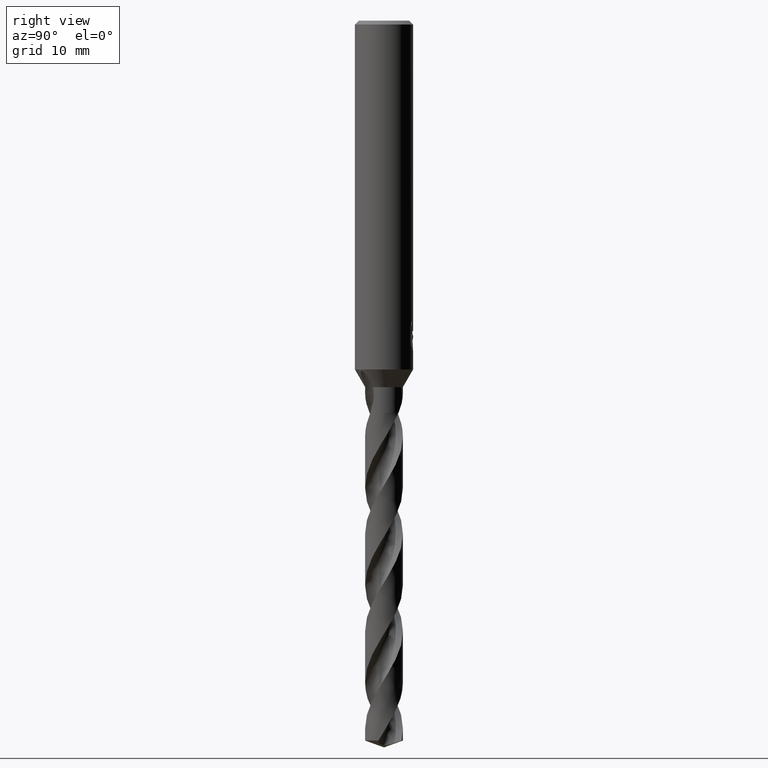
[diagram: clean part render]
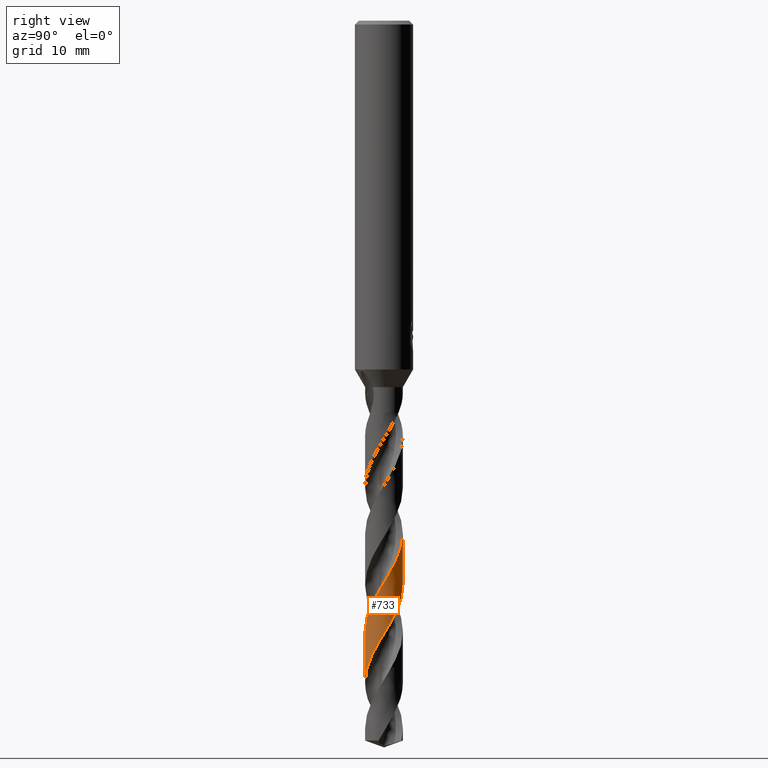
[diagram: same view with one face highlighted and labeled with its STEP entity id]
A machine part, right view. The second image highlights one B-rep face of the part: STEP entity #733.
In plain terms, the highlighted conical surface has half-angle 0 deg.
Its self-contained STEP definition (entity closure, byte-faithful):
#363=VERTEX_POINT('',#923);
#571=VERTEX_POINT('',#1148);
#573=VERTEX_POINT('',#1150);
#577=VERTEX_POINT('',#1154);
#637=EDGE_CURVE('',#571,#363,#1218,.T.);
#699=EDGE_CURVE('',#573,#577,#1289,.T.);
#733=ADVANCED_FACE('',(#1326),#1327,.T.);
#747=EDGE_CURVE('',#571,#577,#1342,.T.);
#777=EDGE_CURVE('',#573,#363,#1374,.T.);
#923=CARTESIAN_POINT('',(-1.05554729201607E-014,1.94995261129944,-58.2530412703941));
#1148=CARTESIAN_POINT('',(4.85083929475335E-014,1.94993697140284,-52.9602096663233));
#1150=CARTESIAN_POINT('',(9.78225902459E-013,-1.94998228901867,-68.2965328845222));
#1154=CARTESIAN_POINT('',(-3.98840838446349E-015,-1.9499666499134,-63.0039690808422));
#1218=LINE('',#5367,#5368);
#1289=LINE('',#5627,#5628);
#1326=FACE_OUTER_BOUND('',#6011,.T.);
#1327=CONICAL_SURFACE('',#6012,1.94995,2.95492049733504E-006);
#1342=B_SPLINE_CURVE_WITH_KNOTS('',3,(#6214,#6215,#6216,#6217,#6218,#6219,#6220,#6221,#6222,#6223,#6224,#6225,#6226,#6227,#6228,#6229,#6230,#6231,#6232,#6233,#6234,#6235,#6236,#6237,#6238,#6239,#6240,#6241,#6242,#6243,#6244,#6245,#6246,#6247,#6248,#6249,#6250,#6251,#6252,#6253,#6254,#6255,#6256,#6257,#6258,#6259,#6260,#6261,#6262,#6263,#6264,#6265,#6266,#6267,#6268,#6269,#6270,#6271,#6272,#6273,#6274,#6275,#6276,#6277,#6278,#6279,#6280,#6281,#6282,#6283,#6284,#6285,#6286,#6287,#6288,#6289,#6290,#6291,#6292,#6293,#6294,#6295,#6296,#6297,#6298,#6299,#6300,#6301,#6302,#6303,#6304,#6305,#6306,#6307,#6308,#6309,#6310,#6311,#6312,#6313,#6314,#6315,#6316,#6317,#6318,#6319,#6320,#6321,#6322,#6323,#6324,#6325,#6326,#6327,#6328,#6329,#6330,#6331,#6332,#6333,#6334,#6335,#6336,#6337,#6338,#6339,#6340,#6341,#6342,#6343,#6344,#6345,#6346,#6347,#6348,#6349,#6350,#6351,#6352,#6353,#6354,#6355,#6356,#6357,#6358,#6359,#6360,#6361,#6362,#6363,#6364,#6365,#6366,#6367,#6368,#6369),.UNSPECIFIED.,.F.,.F.,(4,2,2,2,2,2,2,2,2,2,2,2,2,2,2,2,2,2,2,2,2,2,2,2,2,2,2,2,2,2,2,2,2,2,2,2,2,2,2,2,2,2,2,2,2,2,2,2,2,2,2,2,2,2,2,2,2,2,2,2,2,2,2,2,2,2,2,2,2,2,2,2,2,2,2,2,2,4),(0.0,0.0979046853951883,0.149922485147362,0.160049441697589,0.163963055579134,0.165513142605427,0.417084721360923,0.474068618692059,0.504859357691474,0.530490834681193,0.560616053081731,0.614557041861671,0.690720552955722,1.01953902144858,1.23973757551938,1.61599705278352,2.1549237169816,2.71774002751933,3.26552075598812,3.60811141031876,3.97075666202703,4.92372576567829,4.99723120420625,6.04110593505541,6.39069278509595,7.12446955603766,7.62708374864835,8.35987913346171,8.85896792930462,9.57970487598089,10.1083711978869,10.8537332023969,11.3272716179718,12.0450675342314,12.5818285286132,13.3304133229661,13.7963904548219,14.5056606606216,15.0651349985822,15.8354825482885,16.2644103893556,16.9069931244814,17.5827160421169,18.4490726076606,18.7718130564106,19.5395224702248,19.971940138428,20.6154696603686,21.2908778009532,22.1652083560368,22.4818634637873,23.2553496627868,23.6779000007728,24.3204521121955,24.9958579002632,25.8699056265542,26.1867991102615,26.9612273660296,27.3817937625295,28.0205002427548,28.6963572167619,29.5590423590258,29.8845076190832,30.648854355607,31.3602851710284,32.03179307645,32.3558295561605,33.1220093270903,33.555451203738,34.1996794489425,34.4817650741233,34.8155460858312,35.5641884588478,36.3415493268169,36.936320586868,37.3799048524212,38.053288661507,38.7314257504642),.UNSPECIFIED.);
#1374=B_SPLINE_CURVE_WITH_KNOTS('',3,(#6420,#6421,#6422,#6423,#6424,#6425,#6426,#6427,#6428,#6429,#6430,#6431,#6432,#6433,#6434,#6435,#6436,#6437,#6438,#6439,#6440,#6441,#6442,#6443,#6444,#6445,#6446,#6447,#6448,#6449,#6450,#6451,#6452,#6453,#6454,#6455,#6456,#6457,#6458,#6459,#6460,#6461,#6462,#6463,#6464,#6465,#6466,#6467,#6468,#6469,#6470,#6471,#6472,#6473,#6474,#6475,#6476,#6477,#6478,#6479,#6480,#6481,#6482,#6483,#6484,#6485,#6486,#6487,#6488,#6489,#6490,#6491,#6492,#6493,#6494,#6495,#6496,#6497,#6498,#6499,#6500,#6501,#6502,#6503,#6504,#6505,#6506,#6507,#6508,#6509,#6510,#6511,#6512,#6513,#6514,#6515,#6516,#6517,#6518,#6519,#6520,#6521,#6522,#6523,#6524,#6525,#6526,#6527,#6528,#6529,#6530,#6531,#6532,#6533,#6534,#6535,#6536,#6537,#6538,#6539,#6540,#6541,#6542,#6543,#6544,#6545,#6546,#6547,#6548,#6549,#6550,#6551,#6552,#6553,#6554,#6555),.UNSPECIFIED.,.F.,.F.,(4,2,2,2,2,2,2,2,2,2,2,2,2,2,2,2,2,2,2,2,2,2,2,2,2,2,2,2,2,2,2,2,2,2,2,2,2,2,2,2,2,2,2,2,2,2,2,2,2,2,2,2,2,2,2,2,2,2,2,2,2,2,2,2,2,2,2,4),(0.0,1.02241747386654,1.65349218471775,1.77400106783442,2.72781449900549,3.35600215112076,4.04768943947021,4.33286432280795,5.28861980383423,5.88973198296546,6.51809903709601,7.13662556940909,7.76442942369171,8.38422948727949,9.01153427421295,9.63274516277076,10.2597171023843,10.8821366125359,11.5088518704655,12.1323541731441,12.7588103583242,13.3834541351235,14.0097199012834,14.6355313831368,15.2617419000573,15.8885828135036,16.5147569907077,17.142592013838,17.7687036602715,18.3976629894496,19.0238653233837,19.6538740342576,20.2802343357072,20.9112575034555,21.533759100628,22.1660103710564,22.7618353349035,23.0794934152845,23.354919005303,24.3446104243475,24.6250947829089,25.6060216530638,25.8944085554061,26.8569597577289,27.4636920448669,28.0976084789167,28.7515919177278,29.4504842761027,29.7333865825082,30.7114141271194,31.0046130769319,31.9612650412463,32.5845026001111,33.220180915448,33.8457301072348,34.4806904489976,35.1069788005913,37.2829082048022,37.3741038810244,38.2102312801977,38.7825295377473,39.2282635726625,39.2961593751535,39.3264768907185,39.3590516818284,39.4105293148284,39.5562994202069,39.7686556126109),.UNSPECIFIED.);
#5367=CARTESIAN_POINT('',(-2.38752657586984E-016,1.94995,-57.3693290215905));
#5368=VECTOR('',#7977,1.0);
#5627=CARTESIAN_POINT('',(2.38831574340205E-016,-1.94995,-57.3693290215905));
#5628=VECTOR('',#8064,1.0);
#6011=EDGE_LOOP('',(#8117,#8118,#8119,#8120));
#6012=AXIS2_PLACEMENT_3D('',#8121,#8122,#8123);
#6214=CARTESIAN_POINT('',(1.3553301078067,-1.40185247672167,-40.4534));
#6215=CARTESIAN_POINT('',(1.34371833145889,-1.41307901713366,-40.4817578528927));
#6216=CARTESIAN_POINT('',(1.33192350626701,-1.42420391936833,-40.5101608160472));
#6217=CARTESIAN_POINT('',(1.31352979788099,-1.4411196581388,-40.5536125630587));
#6218=CARTESIAN_POINT('',(1.30709476118686,-1.44695918510251,-40.5686629056433));
#6219=CARTESIAN_POINT('',(1.2993247387912,-1.45391530507211,-40.5866376884887));
#6220=CARTESIAN_POINT('',(1.29805622544452,-1.45504796100044,-40.5895660018118));
#6221=CARTESIAN_POINT('',(1.2962940783799,-1.45661723814348,-40.5936251373874));
#6222=CARTESIAN_POINT('',(1.29580254750836,-1.45705452454529,-40.5947564504834));
#6223=CARTESIAN_POINT('',(1.29511582449243,-1.45766483933725,-40.5963357064044));
#6224=CARTESIAN_POINT('',(1.29492094036287,-1.45783796976688,-40.5967837336493));
#6225=CARTESIAN_POINT('',(1.26308800491878,-1.48610617102669,-40.6699416652995));
#6226=CARTESIAN_POINT('',(1.23083453991984,-1.51297054210055,-40.7401017510077));
#6227=CARTESIAN_POINT('',(1.18839165508777,-1.54594248717846,-40.8277218155206));
#6228=CARTESIAN_POINT('',(1.18048655285334,-1.55198772692643,-40.8438610422588));
#6229=CARTESIAN_POINT('',(1.16818899468232,-1.56124260641394,-40.8687183037018));
#6230=CARTESIAN_POINT('',(1.16385599583751,-1.56447547025157,-40.8774298484447));
#6231=CARTESIAN_POINT('',(1.15587834377709,-1.57037597767451,-40.893389551495));
#6232=CARTESIAN_POINT('',(1.15224163052174,-1.57304635908088,-40.9006350806597));
#6233=CARTESIAN_POINT('',(1.14430170784131,-1.5788341226025,-40.9163937481486));
#6234=CARTESIAN_POINT('',(1.13999548583052,-1.5819462945405,-40.9249023319903));
#6235=CARTESIAN_POINT('',(1.12793123539355,-1.59059032722183,-40.9486442277364));
#6236=CARTESIAN_POINT('',(1.12014421728231,-1.5960839096605,-40.9638591479763));
#6237=CARTESIAN_POINT('',(1.10125002861286,-1.609206668312,-41.0005712717641));
#6238=CARTESIAN_POINT('',(1.09019440896932,-1.61671929297637,-41.0219290577441));
#6239=CARTESIAN_POINT('',(1.02938042076086,-1.65710813886635,-41.1391211984023));
#6240=CARTESIAN_POINT('',(0.978852165062128,-1.68741994909581,-41.2350048759813));
#6241=CARTESIAN_POINT('',(0.892978492680974,-1.7338521836636,-41.3948199081942));
#6242=CARTESIAN_POINT('',(0.858028246533869,-1.75140918695375,-41.4590410551399));
#6243=CARTESIAN_POINT('',(0.762124893333332,-1.79603502166489,-41.6328714892846));
#6244=CARTESIAN_POINT('',(0.700217023248027,-1.82106468401739,-41.742612441371));
#6245=CARTESIAN_POINT('',(0.546771537639941,-1.87411570960822,-42.0092834074817));
#6246=CARTESIAN_POINT('',(0.454176686587782,-1.89869263355667,-42.1655665927878));
#6247=CARTESIAN_POINT('',(0.261668425039622,-1.93485799164464,-42.4861519867449));
#6248=CARTESIAN_POINT('',(0.162175461667034,-1.94571293502455,-42.6497530942826));
#6249=CARTESIAN_POINT('',(-0.0346998475065503,-1.95201794897699,-42.9732053504059));
#6250=CARTESIAN_POINT('',(-0.131950688694404,-1.94786743108375,-43.1326295470159));
#6251=CARTESIAN_POINT('',(-0.288933135870594,-1.92934207746634,-43.3918637352552));
#6252=CARTESIAN_POINT('',(-0.348995566526167,-1.91938872739098,-43.491519050838));
#6253=CARTESIAN_POINT('',(-0.471530580174118,-1.89313466052746,-43.6967798814349));
#6254=CARTESIAN_POINT('',(-0.533808286184573,-1.87652457426259,-43.802221838949));
#6255=CARTESIAN_POINT('',(-0.756286101545626,-1.8052208031269,-44.1852772981824));
#6256=CARTESIAN_POINT('',(-0.910061636255885,-1.73280088372867,-44.4616011452616));
#6257=CARTESIAN_POINT('',(-1.06355010621034,-1.63437797164473,-44.7604408374041));
#6258=CARTESIAN_POINT('',(-1.07446869133969,-1.62722076312208,-44.7818375075814));
#6259=CARTESIAN_POINT('',(-1.2393411573826,-1.51676295098021,-45.1071980078067));
#6260=CARTESIAN_POINT('',(-1.37793286396807,-1.39207827571362,-45.4101796796781));
#6261=CARTESIAN_POINT('',(-1.53663994589525,-1.20198550904078,-45.8159292885383));
#6262=CARTESIAN_POINT('',(-1.57413820493321,-1.15243933299628,-45.9176207998209));
#6263=CARTESIAN_POINT('',(-1.68279478838256,-0.993659960373562,-46.233184248354));
#6264=CARTESIAN_POINT('',(-1.74544821451517,-0.878972274641144,-46.4465473213825));
#6265=CARTESIAN_POINT('',(-1.83095463306586,-0.67658386707264,-46.8066262852604));
#6266=CARTESIAN_POINT('',(-1.86000926303974,-0.592046414904022,-46.9526982738802));
#6267=CARTESIAN_POINT('',(-1.91692918401769,-0.380144603130594,-47.312592469316));
#6268=CARTESIAN_POINT('',(-1.93803515008942,-0.251341295680325,-47.525689786325));
#6269=CARTESIAN_POINT('',(-1.95166223031903,-0.0328311698712412,-47.8844899076666));
#6270=CARTESIAN_POINT('',(-1.95113481315188,0.0559401968240363,-48.0295483489473));
#6271=CARTESIAN_POINT('',(-1.93509614790565,0.272018072146766,-48.3849362742606));
#6272=CARTESIAN_POINT('',(-1.91306563445784,0.39848911801645,-48.5945743450632));
#6273=CARTESIAN_POINT('',(-1.85362916395988,0.612450846005165,-48.9585198723346));
#6274=CARTESIAN_POINT('',(-1.82197731807704,0.701019119374614,-49.1121649225307));
#6275=CARTESIAN_POINT('',(-1.73064279682665,0.90808622432208,-49.483386635715));
#6276=CARTESIAN_POINT('',(-1.66498704109949,1.02351853606516,-49.7001560479014));
#6277=CARTESIAN_POINT('',(-1.53926460627646,1.19998789925821,-50.0552442383553));
#6278=CARTESIAN_POINT('',(-1.48605079798165,1.26528780567684,-50.1929298324806));
#6279=CARTESIAN_POINT('',(-1.3420188052947,1.42037835070644,-50.5400865722925));
#6280=CARTESIAN_POINT('',(-1.24624943932229,1.50511589541356,-50.7489174634354));
#6281=CARTESIAN_POINT('',(-1.06554681615899,1.63583254109761,-51.1144386628904));
#6282=CARTESIAN_POINT('',(-0.984258248573317,1.68599101861978,-51.270458964866));
#6283=CARTESIAN_POINT('',(-0.781643567301745,1.79135779200641,-51.6450529318822));
#6284=CARTESIAN_POINT('',(-0.657625569562795,1.84051229300257,-51.862794146782));
#6285=CARTESIAN_POINT('',(-0.44979094152063,1.89915719250428,-52.2166874093735));
#6286=CARTESIAN_POINT('',(-0.368728330421097,1.91654458742896,-52.3522066566533));
#6287=CARTESIAN_POINT('',(-0.16215831549496,1.94726507695161,-52.6947445435077));
#6288=CARTESIAN_POINT('',(-0.035946531979919,1.953679969261,-52.9011537842406));
#6289=CARTESIAN_POINT('',(0.189401215602927,1.9432654522144,-53.2708876842008));
#6290=CARTESIAN_POINT('',(0.288242310883435,1.93107763513192,-53.4335210940941));
#6291=CARTESIAN_POINT('',(0.51989182291121,1.88433466429325,-53.8211593546356));
#6292=CARTESIAN_POINT('',(0.6509143918387,1.84318912223836,-54.0452250029783));
#6293=CARTESIAN_POINT('',(0.846551953120614,1.75824894374861,-54.3947292680215));
#6294=CARTESIAN_POINT('',(0.914655212056362,1.72380106205268,-54.5195305329322));
#6295=CARTESIAN_POINT('',(1.07927340219423,1.62803225868671,-54.8318943995151));
#6296=CARTESIAN_POINT('',(1.17278416001357,1.56202174674453,-55.0190085089768));
#6297=CARTESIAN_POINT('',(1.351696849377,1.41054463416615,-55.4032740720892));
#6298=CARTESIAN_POINT('',(1.43600172525718,1.32461567049376,-55.5995796220801));
#6299=CARTESIAN_POINT('',(1.60909554670708,1.11211971442433,-56.0491821061786));
#6300=CARTESIAN_POINT('',(1.69190347935882,0.981583023380649,-56.3009239102744));
#6301=CARTESIAN_POINT('',(1.78330570116978,0.790830811953241,-56.647505434082));
#6302=CARTESIAN_POINT('',(1.80580492441936,0.738009034784046,-56.7415143516039));
#6303=CARTESIAN_POINT('',(1.87382524663744,0.556508618794553,-57.05945249602));
#6304=CARTESIAN_POINT('',(1.90818699738585,0.423999899552319,-57.2828100962364));
#6305=CARTESIAN_POINT('',(1.93982207705459,0.212873354845937,-57.6326471956281));
#6306=CARTESIAN_POINT('',(1.94670568144509,0.136221673101609,-57.7584911015277));
#6307=CARTESIAN_POINT('',(1.95253173027472,-0.0549725878079343,-58.0722241669246));
#6308=CARTESIAN_POINT('',(1.94594604263978,-0.16944262110094,-58.2596579749875));
#6309=CARTESIAN_POINT('',(1.91193678369487,-0.40155839609675,-58.6442001773124));
#6310=CARTESIAN_POINT('',(1.88357989510517,-0.51852233595458,-58.8404644887082));
#6311=CARTESIAN_POINT('',(1.79427288291233,-0.779147779910466,-59.2924073694058));
#6312=CARTESIAN_POINT('',(1.7264635203911,-0.919703654169977,-59.5464986175546));
#6313=CARTESIAN_POINT('',(1.6122756988202,-1.09821469508789,-59.8937117226147));
#6314=CARTESIAN_POINT('',(1.57988609021432,-1.14431840735925,-59.985976406361));
#6315=CARTESIAN_POINT('',(1.46171113855141,-1.29794100277436,-60.3038982028591));
#6316=CARTESIAN_POINT('',(1.36653162654404,-1.39781013900828,-60.5289728016646));
#6317=CARTESIAN_POINT('',(1.20426575662792,-1.53549403827568,-60.8776958512584));
#6318=CARTESIAN_POINT('',(1.14419426595266,-1.58076316437736,-61.0007044228978));
#6319=CARTESIAN_POINT('',(0.98660739678217,-1.68582669424108,-61.3113470800813));
#6320=CARTESIAN_POINT('',(0.886126086083831,-1.74074721810202,-61.4985409507731));
#6321=CARTESIAN_POINT('',(0.671302170017199,-1.83470668275097,-61.8828869525809));
#6322=CARTESIAN_POINT('',(0.55703041483452,-1.87256500584254,-62.0791953700255));
#6323=CARTESIAN_POINT('',(0.288621820065524,-1.9347394782136,-62.5311592173261));
#6324=CARTESIAN_POINT('',(0.133491565774813,-1.95160040878358,-62.7852277854757));
#6325=CARTESIAN_POINT('',(-0.078444976794425,-1.94920456410224,-63.1325077711384));
#6326=CARTESIAN_POINT('',(-0.134760451931094,-1.94612124967311,-63.2248628290046));
#6327=CARTESIAN_POINT('',(-0.327902754104323,-1.92712807226788,-63.5432014947432));
#6328=CARTESIAN_POINT('',(-0.463205237987151,-1.89916177998698,-63.7685984606335));
#6329=CARTESIAN_POINT('',(-0.665755269476076,-1.83432684167435,-64.1170968016228));
#6330=CARTESIAN_POINT('',(-0.735641941993412,-1.80743208324675,-64.2395566415404));
#6331=CARTESIAN_POINT('',(-0.907298194349573,-1.72976976635561,-64.5485698941215));
#6332=CARTESIAN_POINT('',(-1.00653794861392,-1.67397395846215,-64.7346915672691));
#6333=CARTESIAN_POINT('',(-1.19965742143771,-1.54197287754284,-65.1181377024976));
#6334=CARTESIAN_POINT('',(-1.2924259710138,-1.46508738491347,-65.3146170699371));
#6335=CARTESIAN_POINT('',(-1.48610629633373,-1.27178294083422,-65.7635019501211));
#6336=CARTESIAN_POINT('',(-1.58158382420212,-1.15090403995457,-66.0143640846545));
#6337=CARTESIAN_POINT('',(-1.69222112317404,-0.970645612668429,-66.3609122020189));
#6338=CARTESIAN_POINT('',(-1.72029947238452,-0.919962575171922,-66.4557774537498));
#6339=CARTESIAN_POINT('',(-1.80660434139418,-0.746377830394823,-66.7737513776126));
#6340=CARTESIAN_POINT('',(-1.8542601417834,-0.61858597654688,-66.9962922406596));
#6341=CARTESIAN_POINT('',(-1.91984888983806,-0.3641975420244,-67.4267830564853));
#6342=CARTESIAN_POINT('',(-1.93943339331153,-0.238820551606753,-67.6338368769312));
#6343=CARTESIAN_POINT('',(-1.95362464242183,0.00676016814319255,-68.0373698909459));
#6344=CARTESIAN_POINT('',(-1.94954742018491,0.126436271227823,-68.2328235667912));
#6345=CARTESIAN_POINT('',(-1.92727737231184,0.302263493553552,-68.5232189404844));
#6346=CARTESIAN_POINT('',(-1.91749599469181,0.359119131661297,-68.6176779320014));
#6347=CARTESIAN_POINT('',(-1.87617802637098,0.548608665425418,-68.9357974973685));
#6348=CARTESIAN_POINT('',(-1.83324593269604,0.678421257822868,-69.1588872956387));
#6349=CARTESIAN_POINT('',(-1.74533083896876,0.873051837977418,-69.5088515469004));
#6350=CARTESIAN_POINT('',(-1.7094311700741,0.941402632143339,-69.6350909688075));
#6351=CARTESIAN_POINT('',(-1.61037011441025,1.10557529834726,-69.9495726780282));
#6352=CARTESIAN_POINT('',(-1.54259730876865,1.19833083054935,-70.137355912956));
#6353=CARTESIAN_POINT('',(-1.43397086097269,1.32238581390917,-70.4076390114164));
#6354=CARTESIAN_POINT('',(-1.39943989214542,1.35887713038476,-70.4898993593381));
#6355=CARTESIAN_POINT('',(-1.32104623375752,1.43555821974355,-70.669579033927));
#6356=CARTESIAN_POINT('',(-1.2766989286093,1.47513609611715,-70.7668857026108));
#6357=CARTESIAN_POINT('',(-1.1272993558765,1.59668521323469,-71.0827908217413));
#6358=CARTESIAN_POINT('',(-1.01558488137898,1.66997708685808,-71.3008515744156));
#6359=CARTESIAN_POINT('',(-0.7743312673509,1.7950047012307,-71.7461192503202));
#6360=CARTESIAN_POINT('',(-0.645048134293141,1.84540392733929,-71.9723312135191));
#6361=CARTESIAN_POINT('',(-0.409467837438994,1.90945343733927,-72.3728293957639));
#6362=CARTESIAN_POINT('',(-0.305221480976261,1.92886911258935,-72.5460926540428));
#6363=CARTESIAN_POINT('',(-0.121302144628472,1.94782134629464,-72.849073319536));
#6364=CARTESIAN_POINT('',(-0.0423366410012439,1.95113396186643,-72.9783944167969));
#6365=CARTESIAN_POINT('',(0.156398959689076,1.94740539983392,-73.3043918465269));
#6366=CARTESIAN_POINT('',(0.275798164464542,1.93411735016533,-73.5004960227246));
#6367=CARTESIAN_POINT('',(0.51156271664294,1.88557324500827,-73.8948271845536));
#6368=CARTESIAN_POINT('',(0.627231299471811,1.85030073983331,-74.0922555101994));
#6369=CARTESIAN_POINT('',(0.738801707064484,1.80462517926538,-74.2902580431809));
#6420=CARTESIAN_POINT('',(-1.86090575201508,0.582691841471285,-74.2902580431809));
#6421=CARTESIAN_POINT('',(-1.91406108762914,0.412930163391179,-73.9995621659353));
#6422=CARTESIAN_POINT('',(-1.94367171419087,0.236975360791223,-73.7069413993602));
#6423=CARTESIAN_POINT('',(-1.95243305069733,-0.0500304845701388,-73.2367940984765));
#6424=CARTESIAN_POINT('',(-1.94653134451806,-0.159489628398427,-73.0582734178611));
#6425=CARTESIAN_POINT('',(-1.92866842576563,-0.288368974828579,-72.844337237033));
#6426=CARTESIAN_POINT('',(-1.92547454581618,-0.308978420896607,-72.810012665942));
#6427=CARTESIAN_POINT('',(-1.89397732990478,-0.492648101161405,-72.5037669308483));
#6428=CARTESIAN_POINT('',(-1.84536988373596,-0.651551618746821,-72.2350429260994));
#6429=CARTESIAN_POINT('',(-1.73231202386085,-0.901923316329883,-71.7845184937885));
#6430=CARTESIAN_POINT('',(-1.67914916435098,-0.997425814909046,-71.6048897199672));
#6431=CARTESIAN_POINT('',(-1.55108986998913,-1.18787627903697,-71.2289724978346));
#6432=CARTESIAN_POINT('',(-1.47493540390976,-1.28119079901486,-71.0331772987506));
#6433=CARTESIAN_POINT('',(-1.35605188822844,-1.40215333960525,-70.7548393903094));
#6434=CARTESIAN_POINT('',(-1.32006857013347,-1.43607701373543,-70.6734024295816));
#6435=CARTESIAN_POINT('',(-1.15819070144967,-1.577483562194,-70.3201166328348));
#6436=CARTESIAN_POINT('',(-1.02011931268613,-1.67011018541786,-70.0512636020705));
#6437=CARTESIAN_POINT('',(-0.778671019338306,-1.7908042358667,-69.608451244857));
#6438=CARTESIAN_POINT('',(-0.68179439112907,-1.82989133901492,-69.4367972066315));
#6439=CARTESIAN_POINT('',(-0.477974939714525,-1.89364538316304,-69.0870240391018));
#6440=CARTESIAN_POINT('',(-0.371295084545578,-1.91741224765263,-68.9091618286237));
#6441=CARTESIAN_POINT('',(-0.156884704878099,-1.94662356984256,-68.5543603129678));
#6442=CARTESIAN_POINT('',(-0.0495162704889497,-1.95231270297481,-68.3776580932322));
#6443=CARTESIAN_POINT('',(0.166894186678962,-1.94588486733545,-68.022991448626));
#6444=CARTESIAN_POINT('',(0.275413484837834,-1.93350781960051,-67.8452420462112));
#6445=CARTESIAN_POINT('',(0.487805399048902,-1.89104360371786,-67.4901782683611));
#6446=CARTESIAN_POINT('',(0.591350828476049,-1.86126702180541,-67.3130808201578));
#6447=CARTESIAN_POINT('',(0.793878554726183,-1.7843894967364,-66.9581474728141));
#6448=CARTESIAN_POINT('',(0.892311260039727,-1.73725657671081,-66.7805369096731));
#6449=CARTESIAN_POINT('',(1.07934072406234,-1.6275963490458,-66.4252107902831));
#6450=CARTESIAN_POINT('',(1.16765019384366,-1.56545234225674,-66.2477169853381));
#6451=CARTESIAN_POINT('',(1.33399384165376,-1.42643655950683,-65.8924814792536));
#6452=CARTESIAN_POINT('',(1.41154708168062,-1.34973778165083,-65.7149695234979));
#6453=CARTESIAN_POINT('',(1.55252616753928,-1.18479706984404,-65.3594325523637));
#6454=CARTESIAN_POINT('',(1.61574872994296,-1.09700995711016,-65.181611013839));
#6455=CARTESIAN_POINT('',(1.72746265042067,-0.911101133824807,-64.8261449922422));
#6456=CARTESIAN_POINT('',(1.77560740079348,-0.81329723391595,-64.6487286253117));
#6457=CARTESIAN_POINT('',(1.85487890480393,-0.611173495150195,-64.2930278199959));
#6458=CARTESIAN_POINT('',(1.88591609261189,-0.50736036063506,-64.1149241022845));
#6459=CARTESIAN_POINT('',(1.93058079703076,-0.295057555005952,-63.759294747475));
#6460=CARTESIAN_POINT('',(1.94403093528865,-0.186954836412421,-63.5819901833756));
#6461=CARTESIAN_POINT('',(1.95274926778934,0.0301035248690202,-63.2261435696278));
#6462=CARTESIAN_POINT('',(1.9480563999066,0.138528862379569,-63.0477663688088));
#6463=CARTESIAN_POINT('',(1.92067401576977,0.353811072629253,-62.6919705960187));
#6464=CARTESIAN_POINT('',(1.89797832187159,0.460284679051016,-62.5147733730403));
#6465=CARTESIAN_POINT('',(1.83507146107406,0.668337628297414,-62.1587862417803));
#6466=CARTESIAN_POINT('',(1.79503804070181,0.769397261250666,-61.9801520193294));
#6467=CARTESIAN_POINT('',(1.69855310192042,0.963878619198295,-61.6241755945009));
#6468=CARTESIAN_POINT('',(1.64223895376919,1.05698293082916,-61.4470625320144));
#6469=CARTESIAN_POINT('',(1.51455650995585,1.23300444485975,-61.0909601737039));
#6470=CARTESIAN_POINT('',(1.44351036350479,1.3154555611412,-60.9121197798581));
#6471=CARTESIAN_POINT('',(1.28855405290602,1.46756422823488,-60.5560225054663));
#6472=CARTESIAN_POINT('',(1.20487465283395,1.53701487823893,-60.3790020477298));
#6473=CARTESIAN_POINT('',(1.02648096011105,1.66148519916489,-60.0228150284747));
#6474=CARTESIAN_POINT('',(0.932218804949009,1.71613562039208,-59.8437933319077));
#6475=CARTESIAN_POINT('',(0.73593836952766,1.80899949664543,-59.4876213342196));
#6476=CARTESIAN_POINT('',(0.634184297068141,1.84713869255654,-59.3107144610817));
#6477=CARTESIAN_POINT('',(0.424767646051083,1.90624941875766,-58.9544477136966));
#6478=CARTESIAN_POINT('',(0.31765683398338,1.92698199393671,-58.7752364811174));
#6479=CARTESIAN_POINT('',(0.101727640508681,1.95031003717891,-58.4189440714644));
#6480=CARTESIAN_POINT('',(-0.00684933613604331,1.9529571284506,-58.2421231172797));
#6481=CARTESIAN_POINT('',(-0.224139445017901,1.94010036497036,-57.8857821364772));
#6482=CARTESIAN_POINT('',(-0.332239733085218,1.92452307136628,-57.7064166826333));
#6483=CARTESIAN_POINT('',(-0.543887249304592,1.87569129667446,-57.3500367112435));
#6484=CARTESIAN_POINT('',(-0.647266318384239,1.84258294530819,-57.1732984943006));
#6485=CARTESIAN_POINT('',(-0.848356943748033,1.75912699156617,-56.816902591149));
#6486=CARTESIAN_POINT('',(-0.945445908840012,1.70889045054195,-56.6374071678602));
#6487=CARTESIAN_POINT('',(-1.12874178949681,1.59367304488612,-56.2821208415983));
#6488=CARTESIAN_POINT('',(-1.2149516223639,1.52898100681837,-56.1066032294986));
#6489=CARTESIAN_POINT('',(-1.37721024950079,1.38475427453461,-55.7512669055589));
#6490=CARTESIAN_POINT('',(-1.45260420571503,1.30542014610027,-55.5716136045906));
#6491=CARTESIAN_POINT('',(-1.58519208170761,1.14018046172369,-55.2238656786329));
#6492=CARTESIAN_POINT('',(-1.64314355595572,1.05497271118873,-55.0559573916499));
#6493=CARTESIAN_POINT('',(-1.72133405659108,0.917769114800205,-54.7975386905351));
#6494=CARTESIAN_POINT('',(-1.74646387503368,0.86898759073927,-54.7077603451699));
#6495=CARTESIAN_POINT('',(-1.7894377495305,0.776170821715288,-54.5398293996742));
#6496=CARTESIAN_POINT('',(-1.80778464583288,0.732418126327776,-54.4616804934546));
#6497=CARTESIAN_POINT('',(-1.88466472659159,0.528545087083613,-54.1036298983058));
#6498=CARTESIAN_POINT('',(-1.923640050989,0.361865807440008,-53.8270659284064));
#6499=CARTESIAN_POINT('',(-1.94520722621916,0.144097393169541,-53.4678401436132));
#6500=CARTESIAN_POINT('',(-1.9481747262845,0.0959231642279829,-53.3883441270084));
#6501=CARTESIAN_POINT('',(-1.95348045483423,-0.120950178187947,-53.0318192407206));
#6502=CARTESIAN_POINT('',(-1.93570933398726,-0.289436554255711,-52.7580054736891));
#6503=CARTESIAN_POINT('',(-1.88489809766721,-0.50186607379912,-52.3995323121104));
#6504=CARTESIAN_POINT('',(-1.87153449510934,-0.549596574906346,-52.3179042459503));
#6505=CARTESIAN_POINT('',(-1.80581523241036,-0.754041513075062,-51.9649166745295));
#6506=CARTESIAN_POINT('',(-1.73544556839421,-0.904338815392962,-51.6965421924868));
#6507=CARTESIAN_POINT('',(-1.59105466072339,-1.13210007471625,-51.2541482022424));
#6508=CARTESIAN_POINT('',(-1.52822038252549,-1.21560043740088,-51.0824199980001));
#6509=CARTESIAN_POINT('',(-1.38651547592535,-1.37539530270348,-50.7325952403719));
#6510=CARTESIAN_POINT('',(-1.30741060597601,-1.45079042488858,-50.5547517380037));
#6511=CARTESIAN_POINT('',(-1.13482549780207,-1.5896687913226,-50.1915341736307));
#6512=CARTESIAN_POINT('',(-1.04123911264741,-1.65249057245862,-50.0063681859775));
#6513=CARTESIAN_POINT('',(-0.837292728978311,-1.76511820401391,-49.6248055345082));
#6514=CARTESIAN_POINT('',(-0.726859474349702,-1.8133736358014,-49.4288867979795));
#6515=CARTESIAN_POINT('',(-0.566630638163254,-1.86641508127826,-49.1518400634907));
#6516=CARTESIAN_POINT('',(-0.51997763579872,-1.87994380431709,-49.0718358246277));
#6517=CARTESIAN_POINT('',(-0.310090213654792,-1.93240997240805,-48.7162646012592));
#6518=CARTESIAN_POINT('',(-0.142699597914445,-1.95193147305107,-48.4438527313712));
#6519=CARTESIAN_POINT('',(0.075543672881569,-1.94910885502151,-48.0856776774292));
#6520=CARTESIAN_POINT('',(0.125758041414365,-1.9465104345535,-48.0028774705522));
#6521=CARTESIAN_POINT('',(0.338915823760434,-1.92721723730554,-47.651049374581));
#6522=CARTESIAN_POINT('',(0.499623956664138,-1.89194818701745,-47.3849141987875));
#6523=CARTESIAN_POINT('',(0.75479982037152,-1.80107743702858,-46.9406366916778));
#6524=CARTESIAN_POINT('',(0.852393392731728,-1.75700342854518,-46.7646839487635));
#6525=CARTESIAN_POINT('',(1.04142151786883,-1.65213028460388,-46.4106129284104));
#6526=CARTESIAN_POINT('',(1.13221514758506,-1.59127566397004,-46.2327252955656));
#6527=CARTESIAN_POINT('',(1.30123301405005,-1.45618747004203,-45.8779249903832));
#6528=CARTESIAN_POINT('',(1.37939851918926,-1.3823797154529,-45.7012417491634));
#6529=CARTESIAN_POINT('',(1.52400405169238,-1.22125814694232,-45.3466169083181));
#6530=CARTESIAN_POINT('',(1.58988849432107,-1.13415015775482,-45.1688955192897));
#6531=CARTESIAN_POINT('',(1.7055745872444,-0.951173496696007,-44.8140218903089));
#6532=CARTESIAN_POINT('',(1.75538234582574,-0.855776240101068,-44.6371074275931));
#6533=CARTESIAN_POINT('',(1.94207692596517,-0.412370032126868,-43.8486196642253));
#6534=CARTESIAN_POINT('',(1.98447547001856,-0.0348878080203122,-43.2547710372727));
#6535=CARTESIAN_POINT('',(1.91911729332215,0.345492183696206,-42.6174819514493));
#6536=CARTESIAN_POINT('',(1.9163120834145,0.360728292207128,-42.5918627389952));
#6537=CARTESIAN_POINT('',(1.88579664821089,0.516005465108106,-42.3306531145492));
#6538=CARTESIAN_POINT('',(1.84311174194157,0.652393199192858,-42.1004697486599));
#6539=CARTESIAN_POINT('',(1.74606737000265,0.873498787567616,-41.708048988326));
#6540=CARTESIAN_POINT('',(1.70036979355375,0.959130321231726,-41.5503687699143));
#6541=CARTESIAN_POINT('',(1.6100609948058,1.10241658502033,-41.2654862968855));
#6542=CARTESIAN_POINT('',(1.56803543413303,1.16119265608899,-41.1407737650156));
#6543=CARTESIAN_POINT('',(1.5172793285211,1.22478382500237,-40.9944435321784));
#6544=CARTESIAN_POINT('',(1.51078203346087,1.23283199341626,-40.9756039881123));
#6545=CARTESIAN_POINT('',(1.49705987701612,1.24938842854758,-40.9384813118056));
#6546=CARTESIAN_POINT('',(1.49274575879554,1.25454051861077,-40.9270720516641));
#6547=CARTESIAN_POINT('',(1.48362768701804,1.26531323280776,-40.9035023562767));
#6548=CARTESIAN_POINT('',(1.47881301851718,1.27093800717937,-40.8913539981692));
#6549=CARTESIAN_POINT('',(1.46614330401631,1.28556564772958,-40.8601530055708));
#6550=CARTESIAN_POINT('',(1.45815115796972,1.29462794219991,-40.8411992355223));
#6551=CARTESIAN_POINT('',(1.42658761941365,1.32972872063516,-40.7691230006002));
#6552=CARTESIAN_POINT('',(1.40140700989781,1.35633671979673,-40.7172605083723));
#6553=CARTESIAN_POINT('',(1.33439993031721,1.42289308287611,-40.5925895659977));
#6554=CARTESIAN_POINT('',(1.29069326600801,1.46291681740788,-40.5219125891903));
#6555=CARTESIAN_POINT('',(1.24254090396988,1.50273156936949,-40.4534));
#7977=DIRECTION('',(-3.6186144160712E-022,2.95492049733074E-006,-0.999999999995634));
#8064=DIRECTION('',(-3.6186144160712E-022,2.95492049733074E-006,0.999999999995634));
#8117=ORIENTED_EDGE('',*,*,#637,.F.);
#8118=ORIENTED_EDGE('',*,*,#747,.T.);
#8119=ORIENTED_EDGE('',*,*,#699,.F.);
#8120=ORIENTED_EDGE('',*,*,#777,.T.);
#8121=CARTESIAN_POINT('',(0.0,0.0,-57.3693290215905));
#8122=DIRECTION('',(0.0,-0.0,-1.0));
#8123=DIRECTION('',(0.0,1.0,0.0));